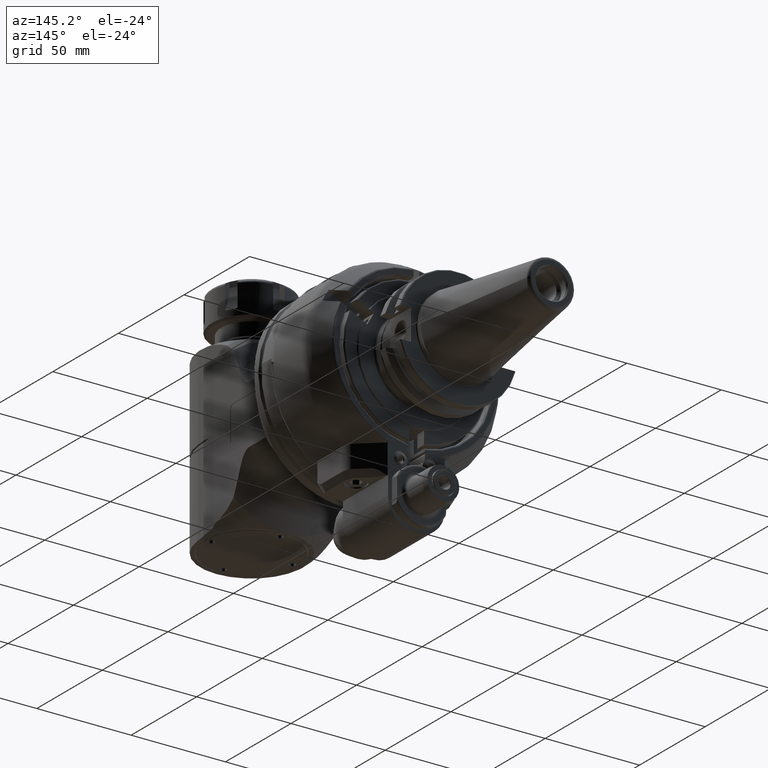
[diagram: clean part render]
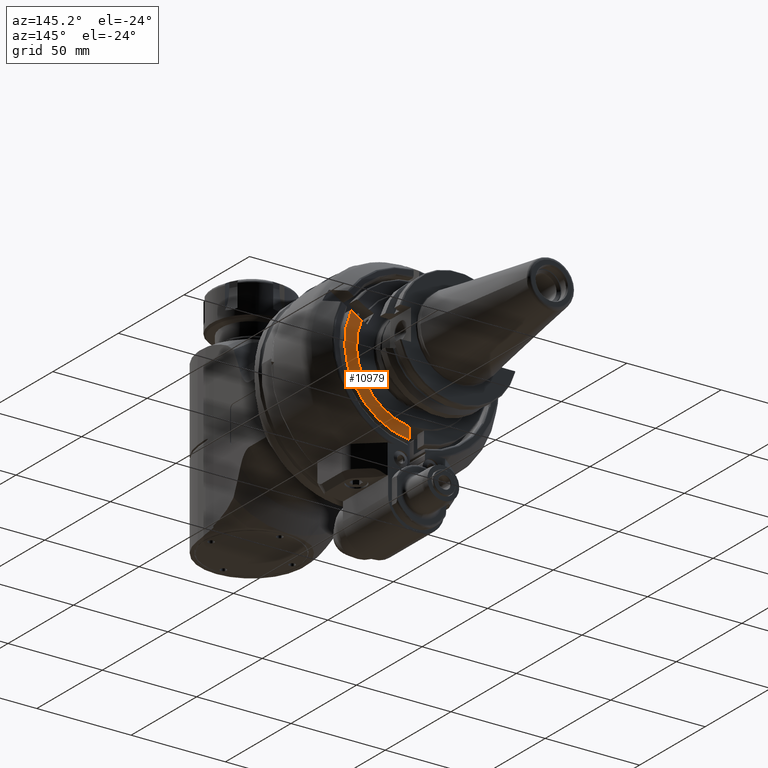
[diagram: same view with one face highlighted and labeled with its STEP entity id]
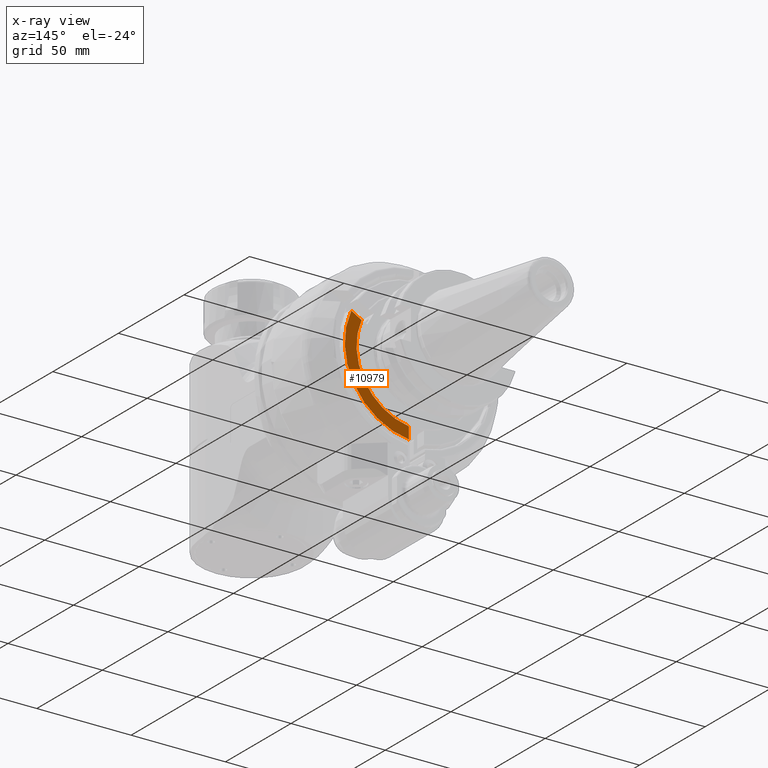
[diagram: x-ray of the same camera — body ghosted, the highlighted face saturated]
A machine part, auxiliary view. The second image highlights one B-rep face of the part: STEP entity #10979.
The next image is the same camera in x-ray: the body ghosted, the highlighted face saturated — about 0% of this face is hidden behind the body in this view.
In plain terms, the highlighted planar face has unit normal (0, 1, 0).
Its self-contained STEP definition (entity closure, byte-faithful):
#1253=CIRCLE('',#12211,31.75);
#1278=CIRCLE('',#12272,38.);
#1917=FACE_OUTER_BOUND('',#2637,.T.);
#2637=EDGE_LOOP('',(#9419,#9420,#9421,#9422));
#3285=LINE('',#21524,#3974);
#3320=LINE('',#21722,#4009);
#3974=VECTOR('',#14991,10.);
#4009=VECTOR('',#15120,6.28197553114879);
#4946=VERTEX_POINT('',#21521);
#4947=VERTEX_POINT('',#21523);
#4960=VERTEX_POINT('',#21567);
#5000=VERTEX_POINT('',#21718);
#6408=EDGE_CURVE('',#4947,#4946,#3285,.T.);
#6425=EDGE_CURVE('',#4946,#4960,#1253,.T.);
#6487=EDGE_CURVE('',#4960,#5000,#3320,.T.);
#6517=EDGE_CURVE('',#5000,#4947,#1278,.T.);
#9419=ORIENTED_EDGE('',*,*,#6517,.T.);
#9420=ORIENTED_EDGE('',*,*,#6408,.T.);
#9421=ORIENTED_EDGE('',*,*,#6425,.T.);
#9422=ORIENTED_EDGE('',*,*,#6487,.T.);
#10200=PLANE('',#12271);
#10979=ADVANCED_FACE('',(#1917),#10200,.T.);
#12211=AXIS2_PLACEMENT_3D('',#21571,#15010,#15011);
#12271=AXIS2_PLACEMENT_3D('',#21881,#15176,#15177);
#12272=AXIS2_PLACEMENT_3D('',#21882,#15178,#15179);
#14991=DIRECTION('',(0.,0.,1.));
#15010=DIRECTION('center_axis',(0.,-1.,0.));
#15011=DIRECTION('ref_axis',(0.86926923622807,0.,0.494338947431283));
#15120=DIRECTION('',(0.866025403784429,0.,0.500000000000017));
#15176=DIRECTION('center_axis',(0.,1.,0.));
#15177=DIRECTION('ref_axis',(-0.86926923622807,0.,-0.494338947431283));
#15178=DIRECTION('center_axis',(0.,1.,0.));
#15179=DIRECTION('ref_axis',(0.908396800327097,0.,0.418109140243899));
#21521=CARTESIAN_POINT('',(3.99951055760265,39.4985543943407,-31.4985430348102));
#21523=CARTESIAN_POINT('',(4.,39.5,-37.78888725538));
#21524=CARTESIAN_POINT('',(4.,39.5,-24.55152642015));
#21567=CARTESIAN_POINT('',(29.0787280165,39.5,12.74715956369));
#21571=CARTESIAN_POINT('Origin',(0.,39.5,0.));
#21718=CARTESIAN_POINT('',(34.51907841243,39.5,15.88814732927));
#21722=CARTESIAN_POINT('',(29.0787280165,39.5,12.74715956369));
#21881=CARTESIAN_POINT('Origin',(-30.95404959954,39.5,-17.6030528403));
#21882=CARTESIAN_POINT('Origin',(0.,39.5,0.));